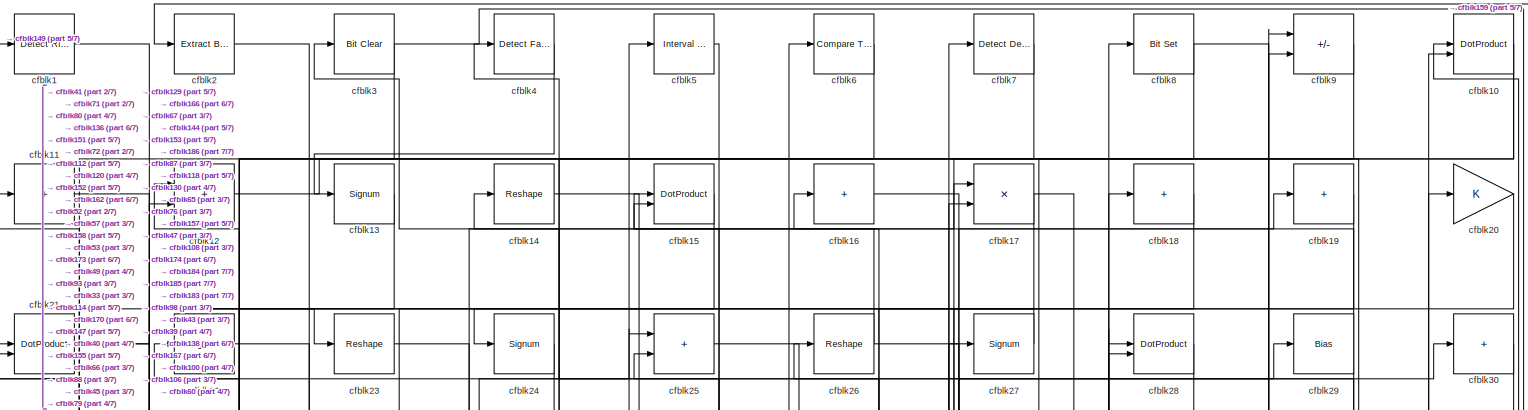
[diagram: root canvas - part 1/7, full width, top band]
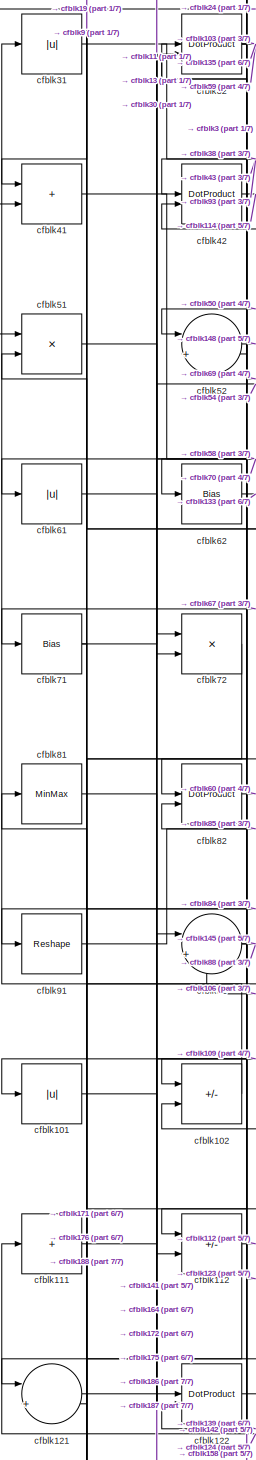
[diagram: root canvas - part 2/7, middle left region]
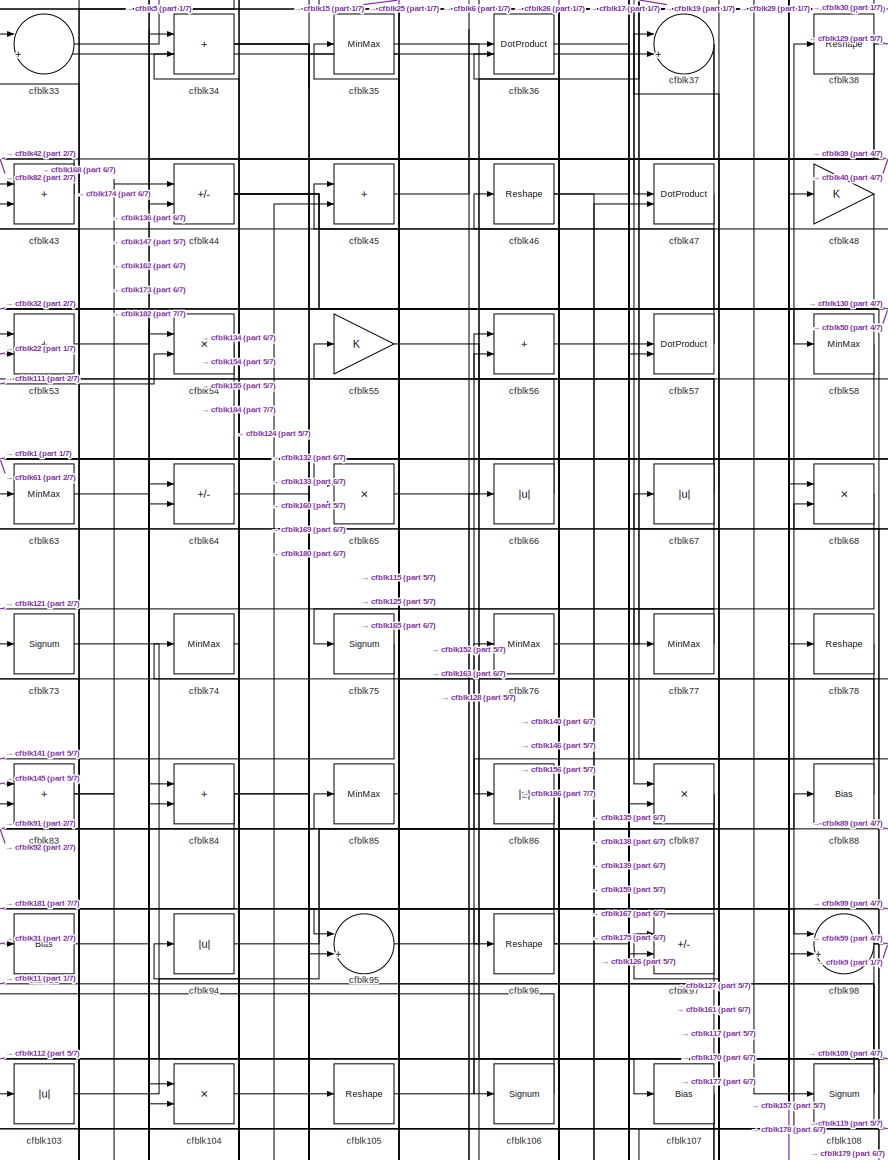
[diagram: root canvas - part 3/7, central region]
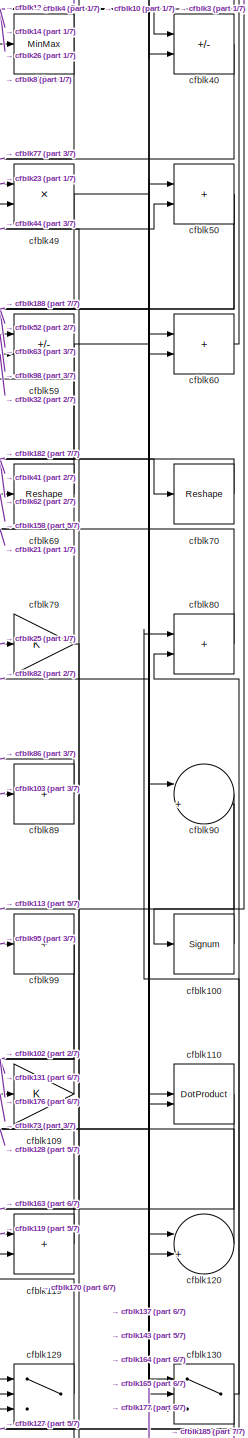
[diagram: root canvas - part 4/7, middle right region]
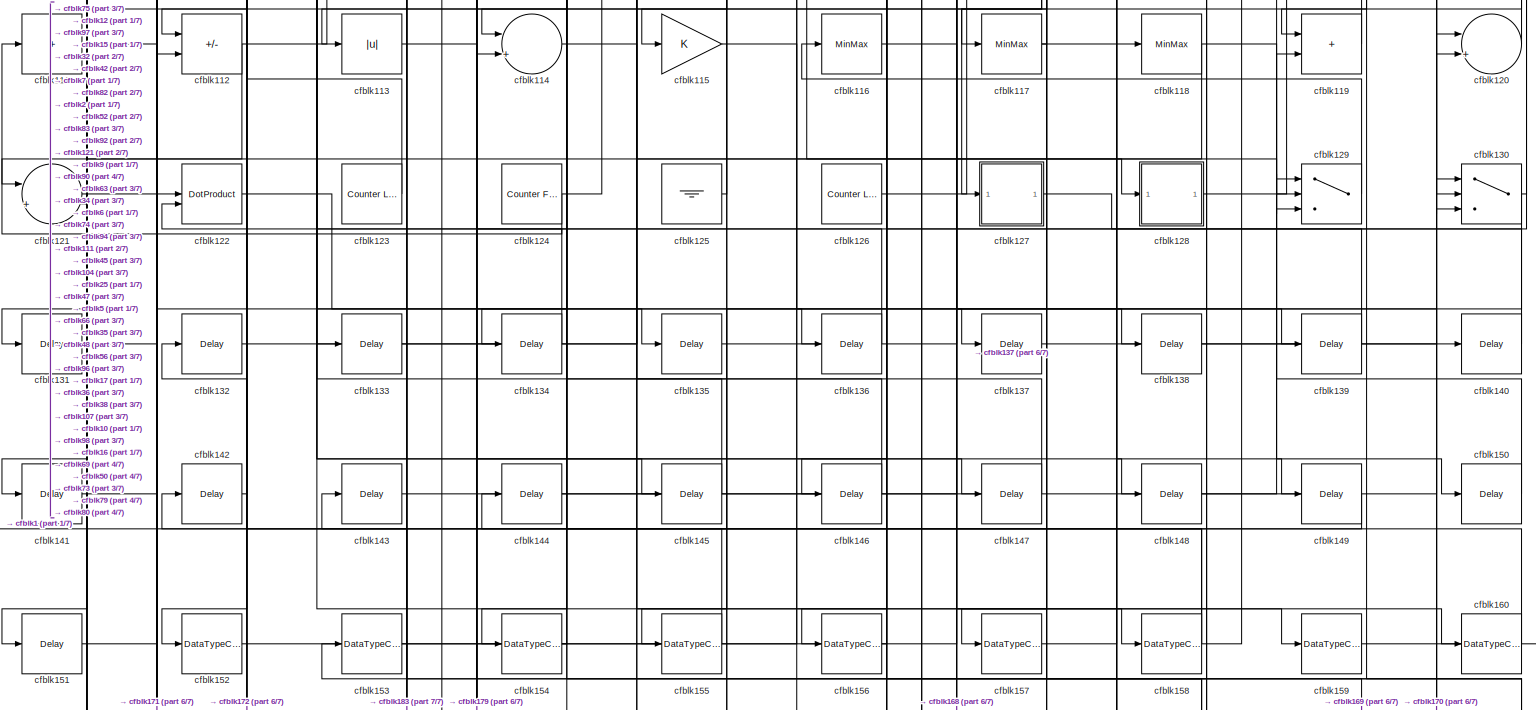
[diagram: root canvas - part 5/7, full width, bottom band]
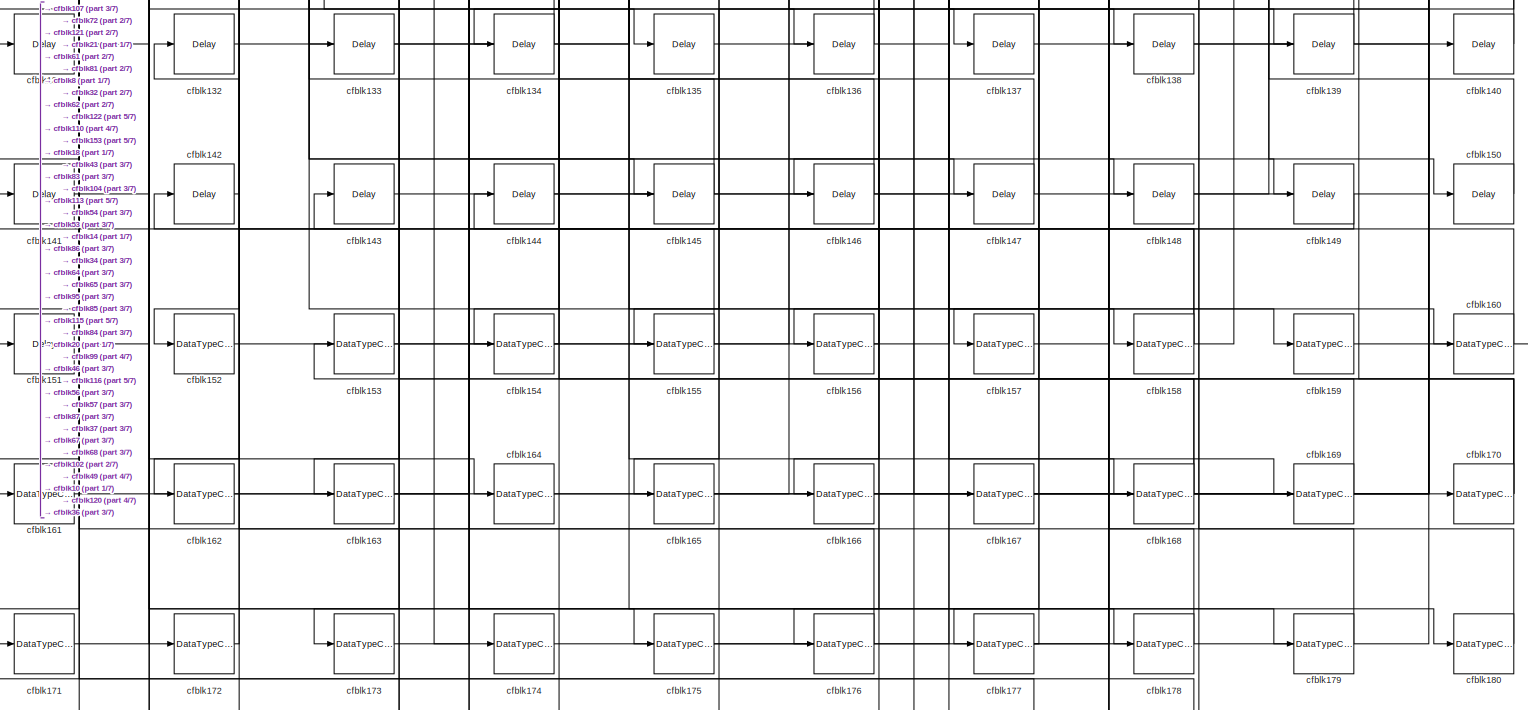
[diagram: root canvas - part 6/7, full width, bottom band]
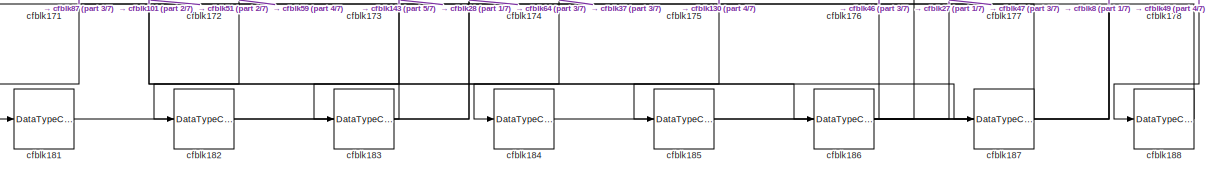
[diagram: root canvas - part 7/7, full width, bottom band]
MODEL slx_a31eda658acb
KIND model
CONFIG AbsTol = auto
CONFIG EnableMultiTasking = off
CONFIG FixedStep = auto
CONFIG MaxStep = auto
CONFIG MinStep = auto
CONFIG RelTol = 1e-3
CONFIG SampleTimeConstraint = Unconstrained
CONFIG SolverName = VariableStepAuto
CONFIG StartTime = 0.0
CONFIG StopTime = 10.0
BLOCK [Reference] cfblk1  REF=hdlsllib/Logic and Bit
Operations/Detect Rise
Positive
  SourceBlock = hdlsllib/Logic and Bit\nOperations/Detect Rise\nPositive
  SourceType = Detect Rise Positive
BLOCK [DotProduct] cfblk10
  OutDataTypeStr = Inherit: Inherit via internal rule
BLOCK [Signum] cfblk100
BLOCK [Abs] cfblk101
  SaturateOnIntegerOverflow = off
BLOCK [Sum] cfblk102
  IconShape = rectangular
  Inputs = +-
BLOCK [Abs] cfblk103
  SaturateOnIntegerOverflow = off
BLOCK [Product] cfblk104
  Inputs = */
  RndMeth = Zero
  SaturateOnIntegerOverflow = on
BLOCK [Reshape] cfblk105
BLOCK [Signum] cfblk106
BLOCK [Bias] cfblk107
  Bias = 0.0
  SaturateOnIntegerOverflow = off
BLOCK [Signum] cfblk108
BLOCK [Gain] cfblk109
BLOCK [Sum] cfblk11
  IconShape = rectangular
  Inputs = +
BLOCK [DotProduct] cfblk110
  OutDataTypeStr = Inherit: Inherit via internal rule
BLOCK [Sum] cfblk111
  IconShape = rectangular
  Inputs = +
BLOCK [Sum] cfblk112
  IconShape = rectangular
  Inputs = +-
BLOCK [Abs] cfblk113
  SaturateOnIntegerOverflow = off
BLOCK [Sum] cfblk114
  Inputs = |++
BLOCK [Gain] cfblk115
BLOCK [MinMax] cfblk116
BLOCK [MinMax] cfblk117
BLOCK [MinMax] cfblk118
BLOCK [Sum] cfblk119
  IconShape = rectangular
BLOCK [Sum] cfblk12
  IconShape = rectangular
BLOCK [Sum] cfblk120
  Inputs = |++
BLOCK [Sum] cfblk121
  Inputs = |++
BLOCK [DotProduct] cfblk122
  OutDataTypeStr = Inherit: Inherit via internal rule
BLOCK [Reference] cfblk123  REF=hdlsllib/Sources/Counter
Limited
  SourceBlock = hdlsllib/Sources/Counter\nLimited
  SourceType = Counter Limited
BLOCK [Reference] cfblk124  REF=hdlsllib/Sources/Counter
Free-Running
  SourceBlock = hdlsllib/Sources/Counter\nFree-Running
  SourceType = Counter Free-Running
BLOCK [Ground] cfblk125
BLOCK [Reference] cfblk126  REF=hdlsllib/Sources/Counter
Limited
  SourceBlock = hdlsllib/Sources/Counter\nLimited
  SourceType = Counter Limited
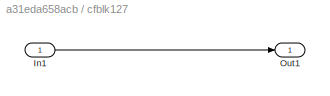
BLOCK [SubSystem] cfblk127
  LibrarySourceBlock = hdlsllib/Ports &\nSubsystems/Subsystem
BLOCK [Inport] cfblk127/In1
BLOCK [Outport] cfblk127/Out1
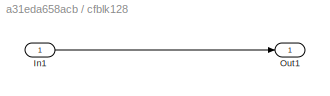
BLOCK [SubSystem] cfblk128
  LibrarySourceBlock = hdlsllib/Ports &\nSubsystems/Subsystem
BLOCK [Inport] cfblk128/In1
BLOCK [Outport] cfblk128/Out1
BLOCK [Switch] cfblk129
  InputSameDT = off
  SaturateOnIntegerOverflow = off
BLOCK [Signum] cfblk13
BLOCK [Switch] cfblk130
  InputSameDT = off
  SaturateOnIntegerOverflow = off
BLOCK [Delay] cfblk131
  InputPortMap = u0
  SampleTime = 1
BLOCK [Delay] cfblk132
  InputPortMap = u0
  SampleTime = 1
BLOCK [Delay] cfblk133
  InputPortMap = u0
  SampleTime = 1
BLOCK [Delay] cfblk134
  InputPortMap = u0
  SampleTime = 1
BLOCK [Delay] cfblk135
  InputPortMap = u0
  SampleTime = 1
BLOCK [Delay] cfblk136
  InputPortMap = u0
  SampleTime = 1
BLOCK [Delay] cfblk137
  InputPortMap = u0
  SampleTime = 1
BLOCK [Delay] cfblk138
  InputPortMap = u0
  SampleTime = 1
BLOCK [Delay] cfblk139
  InputPortMap = u0
  SampleTime = 1
BLOCK [Reshape] cfblk14
BLOCK [Delay] cfblk140
  InputPortMap = u0
  SampleTime = 1
BLOCK [Delay] cfblk141
  InputPortMap = u0
  SampleTime = 1
BLOCK [Delay] cfblk142
  InputPortMap = u0
  SampleTime = 1
BLOCK [Delay] cfblk143
  InputPortMap = u0
  SampleTime = 1
BLOCK [Delay] cfblk144
  InputPortMap = u0
  SampleTime = 1
BLOCK [Delay] cfblk145
  InputPortMap = u0
  SampleTime = 1
BLOCK [Delay] cfblk146
  InputPortMap = u0
  SampleTime = 1
BLOCK [Delay] cfblk147
  InputPortMap = u0
  SampleTime = 1
BLOCK [Delay] cfblk148
  InputPortMap = u0
  SampleTime = 1
BLOCK [Delay] cfblk149
  InputPortMap = u0
  SampleTime = 1
BLOCK [DotProduct] cfblk15
  OutDataTypeStr = Inherit: Inherit via internal rule
BLOCK [Delay] cfblk150
  InputPortMap = u0
  SampleTime = 1
BLOCK [Delay] cfblk151
  InputPortMap = u0
  SampleTime = 1
BLOCK [DataTypeConversion] cfblk152
  OutDataTypeStr = uint8
  RndMeth = Floor
  SaturateOnIntegerOverflow = off
BLOCK [DataTypeConversion] cfblk153
  OutDataTypeStr = uint8
  RndMeth = Floor
  SaturateOnIntegerOverflow = off
BLOCK [DataTypeConversion] cfblk154
  OutDataTypeStr = uint8
  RndMeth = Floor
  SaturateOnIntegerOverflow = off
BLOCK [DataTypeConversion] cfblk155
  OutDataTypeStr = uint8
  RndMeth = Floor
  SaturateOnIntegerOverflow = off
BLOCK [DataTypeConversion] cfblk156
  OutDataTypeStr = uint8
  RndMeth = Floor
  SaturateOnIntegerOverflow = off
BLOCK [DataTypeConversion] cfblk157
  OutDataTypeStr = uint8
  RndMeth = Floor
  SaturateOnIntegerOverflow = off
BLOCK [DataTypeConversion] cfblk158
  RndMeth = Floor
  SaturateOnIntegerOverflow = off
BLOCK [DataTypeConversion] cfblk159
  OutDataTypeStr = uint8
  RndMeth = Floor
  SaturateOnIntegerOverflow = off
BLOCK [Sum] cfblk16
  IconShape = rectangular
  Inputs = +
BLOCK [DataTypeConversion] cfblk160
  OutDataTypeStr = uint8
  RndMeth = Floor
  SaturateOnIntegerOverflow = off
BLOCK [DataTypeConversion] cfblk161
  OutDataTypeStr = uint8
  RndMeth = Floor
  SaturateOnIntegerOverflow = off
BLOCK [DataTypeConversion] cfblk162
  OutDataTypeStr = uint8
  RndMeth = Floor
  SaturateOnIntegerOverflow = off
BLOCK [DataTypeConversion] cfblk163
  OutDataTypeStr = uint8
  RndMeth = Floor
  SaturateOnIntegerOverflow = off
BLOCK [DataTypeConversion] cfblk164
  OutDataTypeStr = uint8
  RndMeth = Floor
  SaturateOnIntegerOverflow = off
BLOCK [DataTypeConversion] cfblk165
  OutDataTypeStr = uint8
  RndMeth = Floor
  SaturateOnIntegerOverflow = off
BLOCK [DataTypeConversion] cfblk166
  OutDataTypeStr = uint8
  RndMeth = Floor
  SaturateOnIntegerOverflow = off
BLOCK [DataTypeConversion] cfblk167
  OutDataTypeStr = uint8
  RndMeth = Floor
  SaturateOnIntegerOverflow = off
BLOCK [DataTypeConversion] cfblk168
  RndMeth = Floor
  SaturateOnIntegerOverflow = off
BLOCK [DataTypeConversion] cfblk169
  OutDataTypeStr = uint8
  RndMeth = Floor
  SaturateOnIntegerOverflow = off
BLOCK [Product] cfblk17
  Inputs = */
  RndMeth = Zero
  SaturateOnIntegerOverflow = on
BLOCK [DataTypeConversion] cfblk170
  RndMeth = Floor
  SaturateOnIntegerOverflow = off
BLOCK [DataTypeConversion] cfblk171
  OutDataTypeStr = uint8
  RndMeth = Floor
  SaturateOnIntegerOverflow = off
BLOCK [DataTypeConversion] cfblk172
  OutDataTypeStr = uint8
  RndMeth = Floor
  SaturateOnIntegerOverflow = off
BLOCK [DataTypeConversion] cfblk173
  OutDataTypeStr = uint8
  RndMeth = Floor
  SaturateOnIntegerOverflow = off
BLOCK [DataTypeConversion] cfblk174
  OutDataTypeStr = uint8
  RndMeth = Floor
  SaturateOnIntegerOverflow = off
BLOCK [DataTypeConversion] cfblk175
  OutDataTypeStr = uint8
  RndMeth = Floor
  SaturateOnIntegerOverflow = off
BLOCK [DataTypeConversion] cfblk176
  OutDataTypeStr = uint8
  RndMeth = Floor
  SaturateOnIntegerOverflow = off
BLOCK [DataTypeConversion] cfblk177
  RndMeth = Floor
  SaturateOnIntegerOverflow = off
BLOCK [DataTypeConversion] cfblk178
  OutDataTypeStr = uint8
  RndMeth = Floor
  SaturateOnIntegerOverflow = off
BLOCK [DataTypeConversion] cfblk179
  OutDataTypeStr = uint8
  RndMeth = Floor
  SaturateOnIntegerOverflow = off
BLOCK [Sum] cfblk18
  IconShape = rectangular
  Inputs = +
BLOCK [DataTypeConversion] cfblk180
  OutDataTypeStr = uint8
  RndMeth = Floor
  SaturateOnIntegerOverflow = off
BLOCK [DataTypeConversion] cfblk181
  OutDataTypeStr = uint8
  RndMeth = Floor
  SaturateOnIntegerOverflow = off
BLOCK [DataTypeConversion] cfblk182
  OutDataTypeStr = uint8
  RndMeth = Floor
  SaturateOnIntegerOverflow = off
BLOCK [DataTypeConversion] cfblk183
  OutDataTypeStr = uint8
  RndMeth = Floor
  SaturateOnIntegerOverflow = off
BLOCK [DataTypeConversion] cfblk184
  OutDataTypeStr = uint8
  RndMeth = Floor
  SaturateOnIntegerOverflow = off
BLOCK [DataTypeConversion] cfblk185
  OutDataTypeStr = uint8
  RndMeth = Floor
  SaturateOnIntegerOverflow = off
BLOCK [DataTypeConversion] cfblk186
  RndMeth = Floor
  SaturateOnIntegerOverflow = off
BLOCK [DataTypeConversion] cfblk187
  OutDataTypeStr = uint8
  RndMeth = Floor
  SaturateOnIntegerOverflow = off
BLOCK [DataTypeConversion] cfblk188
  OutDataTypeStr = uint8
  RndMeth = Floor
  SaturateOnIntegerOverflow = off
BLOCK [Sum] cfblk19
  IconShape = rectangular
  Inputs = +
BLOCK [Reference] cfblk2  REF=simulink/Logic and Bit
Operations/Extract Bits
  LibrarySourceBlock = hdlsllib/Logic and Bit\nOperations/Extract Bits
  SourceBlock = simulink/Logic and Bit\nOperations/Extract Bits
  SourceType = Extract Bits
BLOCK [Gain] cfblk20
BLOCK [DotProduct] cfblk21
  OutDataTypeStr = Inherit: Inherit via internal rule
BLOCK [Signum] cfblk22
BLOCK [Reshape] cfblk23
BLOCK [Signum] cfblk24
BLOCK [Sum] cfblk25
  IconShape = rectangular
BLOCK [Reshape] cfblk26
BLOCK [Signum] cfblk27
BLOCK [DotProduct] cfblk28
  OutDataTypeStr = Inherit: Inherit via internal rule
BLOCK [Bias] cfblk29
  Bias = 0.0
  SaturateOnIntegerOverflow = off
BLOCK [Reference] cfblk3  REF=simulink/Logic and Bit
Operations/Bit Clear
  LibrarySourceBlock = hdlsllib/Logic and Bit\nOperations/Bit Clear
  SourceBlock = simulink/Logic and Bit\nOperations/Bit Clear
  SourceType = Bit Clear
BLOCK [Sum] cfblk30
  IconShape = rectangular
  Inputs = +
BLOCK [Abs] cfblk31
  SaturateOnIntegerOverflow = off
BLOCK [DotProduct] cfblk32
  OutDataTypeStr = Inherit: Inherit via internal rule
BLOCK [Sum] cfblk33
  Inputs = |++
BLOCK [Sum] cfblk34
  IconShape = rectangular
BLOCK [MinMax] cfblk35
BLOCK [DotProduct] cfblk36
  OutDataTypeStr = Inherit: Inherit via internal rule
BLOCK [Sum] cfblk37
  Inputs = |++
BLOCK [Reshape] cfblk38
BLOCK [MinMax] cfblk39
BLOCK [Reference] cfblk4  REF=hdlsllib/Logic and Bit
Operations/Detect Fall
Nonpositive
  SourceBlock = hdlsllib/Logic and Bit\nOperations/Detect Fall\nNonpositive
  SourceType = Detect Fall Nonpositive
BLOCK [Sum] cfblk40
  IconShape = rectangular
  Inputs = +-
BLOCK [Sum] cfblk41
  IconShape = rectangular
BLOCK [DotProduct] cfblk42
  OutDataTypeStr = Inherit: Inherit via internal rule
BLOCK [Sum] cfblk43
  IconShape = rectangular
BLOCK [Sum] cfblk44
  IconShape = rectangular
  Inputs = +-
BLOCK [Sum] cfblk45
  IconShape = rectangular
BLOCK [Reshape] cfblk46
BLOCK [DotProduct] cfblk47
  OutDataTypeStr = Inherit: Inherit via internal rule
BLOCK [Gain] cfblk48
BLOCK [Product] cfblk49
  Inputs = */
  RndMeth = Zero
  SaturateOnIntegerOverflow = on
BLOCK [Reference] cfblk5  REF=hdlsllib/Logic and Bit
Operations/Interval Test
  SourceBlock = hdlsllib/Logic and Bit\nOperations/Interval Test
  SourceType = Interval Test
BLOCK [Sum] cfblk50
  IconShape = rectangular
BLOCK [Product] cfblk51
  Inputs = */
  RndMeth = Zero
  SaturateOnIntegerOverflow = on
BLOCK [Sum] cfblk52
  Inputs = |++
BLOCK [Sum] cfblk53
  IconShape = rectangular
BLOCK [Product] cfblk54
  Inputs = */
  RndMeth = Zero
  SaturateOnIntegerOverflow = on
BLOCK [Gain] cfblk55
BLOCK [Sum] cfblk56
  IconShape = rectangular
BLOCK [DotProduct] cfblk57
  OutDataTypeStr = Inherit: Inherit via internal rule
BLOCK [MinMax] cfblk58
BLOCK [Sum] cfblk59
  IconShape = rectangular
  Inputs = +-
BLOCK [Reference] cfblk6  REF=hdlsllib/Logic and Bit
Operations/Compare
To Constant
  SourceBlock = hdlsllib/Logic and Bit\nOperations/Compare\nTo Constant
  SourceType = Compare To Constant
BLOCK [Sum] cfblk60
  IconShape = rectangular
BLOCK [Abs] cfblk61
  SaturateOnIntegerOverflow = off
BLOCK [Bias] cfblk62
  Bias = 0.0
  SaturateOnIntegerOverflow = off
BLOCK [MinMax] cfblk63
BLOCK [Sum] cfblk64
  IconShape = rectangular
  Inputs = +-
BLOCK [Product] cfblk65
  Inputs = */
  RndMeth = Zero
  SaturateOnIntegerOverflow = on
BLOCK [Abs] cfblk66
  SaturateOnIntegerOverflow = off
BLOCK [Abs] cfblk67
  SaturateOnIntegerOverflow = off
BLOCK [Product] cfblk68
  Inputs = */
  RndMeth = Zero
  SaturateOnIntegerOverflow = on
BLOCK [Reshape] cfblk69
BLOCK [Reference] cfblk7  REF=simulink/Logic and Bit
Operations/Detect
Decrease
  LibrarySourceBlock = hdlsllib/Logic and Bit\nOperations/Detect\nDecrease
  SourceBlock = simulink/Logic and Bit\nOperations/Detect\nDecrease
  SourceType = Detect Decrease
BLOCK [Reshape] cfblk70
BLOCK [Bias] cfblk71
  Bias = 0.0
  SaturateOnIntegerOverflow = off
BLOCK [Product] cfblk72
  Inputs = */
  RndMeth = Zero
  SaturateOnIntegerOverflow = on
BLOCK [Signum] cfblk73
BLOCK [MinMax] cfblk74
BLOCK [Signum] cfblk75
BLOCK [MinMax] cfblk76
BLOCK [MinMax] cfblk77
BLOCK [Reshape] cfblk78
BLOCK [Gain] cfblk79
BLOCK [Reference] cfblk8  REF=simulink/Logic and Bit
Operations/Bit Set
  LibrarySourceBlock = hdlsllib/Logic and Bit\nOperations/Bit Set
  SourceBlock = simulink/Logic and Bit\nOperations/Bit Set
  SourceType = Bit Set
BLOCK [Sum] cfblk80
  IconShape = rectangular
BLOCK [MinMax] cfblk81
BLOCK [DotProduct] cfblk82
  OutDataTypeStr = Inherit: Inherit via internal rule
BLOCK [Sum] cfblk83
  IconShape = rectangular
BLOCK [Sum] cfblk84
  IconShape = rectangular
BLOCK [MinMax] cfblk85
BLOCK [Abs] cfblk86
  SaturateOnIntegerOverflow = off
BLOCK [Product] cfblk87
  Inputs = */
  RndMeth = Zero
  SaturateOnIntegerOverflow = on
BLOCK [Bias] cfblk88
  Bias = 0.0
  SaturateOnIntegerOverflow = off
BLOCK [Sum] cfblk89
  IconShape = rectangular
  Inputs = +
BLOCK [Sum] cfblk9
  IconShape = rectangular
  Inputs = +-
BLOCK [Sum] cfblk90
  Inputs = |++
BLOCK [Reshape] cfblk91
BLOCK [Sum] cfblk92
  Inputs = |++
BLOCK [Bias] cfblk93
  Bias = 0.0
  SaturateOnIntegerOverflow = off
BLOCK [Abs] cfblk94
  SaturateOnIntegerOverflow = off
BLOCK [Sum] cfblk95
  Inputs = |++
BLOCK [Reshape] cfblk96
BLOCK [Sum] cfblk97
  IconShape = rectangular
  Inputs = +-
BLOCK [Sum] cfblk98
  Inputs = |++
BLOCK [Sum] cfblk99
  IconShape = rectangular
  Inputs = +
LINE cfblk100:1 -> cfblk90:2
LINE cfblk101:1 -> cfblk187:1
LINE cfblk102:1 -> cfblk31:1
LINE cfblk103:1 -> cfblk89:1
LINE cfblk104:1 -> cfblk160:1
LINE cfblk105:1 -> cfblk76:1
LINE cfblk106:1 -> cfblk92:2
NET cfblk107:1 -> cfblk127:1, cfblk161:1
NET cfblk108:1 -> cfblk11:1, cfblk33:2
LINE cfblk109:1 -> cfblk102:1
NET cfblk10:1 -> cfblk157:1, cfblk47:1
LINE cfblk110:1 -> cfblk163:1
LINE cfblk111:1 -> cfblk54:2
NET cfblk112:1 -> cfblk121:1, cfblk9:2
LINE cfblk113:1 -> cfblk179:1
LINE cfblk114:1 -> cfblk129:2
LINE cfblk115:1 -> cfblk137:1
LINE cfblk116:1 -> cfblk168:1
NET cfblk117:1 -> cfblk149:1, cfblk97:1
NET cfblk118:1 -> cfblk150:1, cfblk151:1
LINE cfblk119:1 -> cfblk73:1
LINE cfblk11:1 -> cfblk72:1
LINE cfblk120:1 -> cfblk12:1
LINE cfblk121:1 -> cfblk164:1
LINE cfblk122:1 -> cfblk170:1
LINE cfblk123:1 -> cfblk42:2
NET cfblk124:1 -> cfblk111:1, cfblk45:2
LINE cfblk125:1 -> cfblk45:1
LINE cfblk126:1 -> cfblk38:1
LINE cfblk127/In1:1 -> cfblk127/Out1:1
LINE cfblk127:1 -> cfblk80:1
LINE cfblk128/In1:1 -> cfblk128/Out1:1
LINE cfblk128:1 -> cfblk50:1
LINE cfblk129:1 -> cfblk16:1
LINE cfblk12:1 -> cfblk39:1
NET cfblk130:1 -> cfblk185:1, cfblk80:2
LINE cfblk131:1 -> cfblk178:1
LINE cfblk132:1 -> cfblk65:2
LINE cfblk133:1 -> cfblk95:2
LINE cfblk134:1 -> cfblk53:1
LINE cfblk135:1 -> cfblk87:2
LINE cfblk136:1 -> cfblk84:1
LINE cfblk137:1 -> cfblk120:1
LINE cfblk138:1 -> cfblk10:2
LINE cfblk139:1 -> cfblk102:2
LINE cfblk13:1 -> cfblk72:2
LINE cfblk140:1 -> cfblk36:2
LINE cfblk141:1 -> cfblk92:1
LINE cfblk142:1 -> cfblk32:2
LINE cfblk143:1 -> cfblk90:1
LINE cfblk144:1 -> cfblk17:2
LINE cfblk145:1 -> cfblk83:1
LINE cfblk146:1 -> cfblk34:2
LINE cfblk147:1 -> cfblk25:1
LINE cfblk148:1 -> cfblk119:2
LINE cfblk149:1 -> cfblk1:1
LINE cfblk14:1 -> cfblk40:1
LINE cfblk150:1 -> cfblk129:1
LINE cfblk151:1 -> cfblk12:2
LINE cfblk152:1 -> cfblk66:1
LINE cfblk153:1 -> cfblk7:1
LINE cfblk154:1 -> cfblk94:1
LINE cfblk155:1 -> cfblk74:1
LINE cfblk156:1 -> cfblk56:2
LINE cfblk157:1 -> cfblk48:1
NET cfblk158:1 -> cfblk144:1, cfblk69:1, cfblk82:2
LINE cfblk159:1 -> cfblk2:1
LINE cfblk15:1 -> cfblk112:1
LINE cfblk160:1 -> cfblk142:1
LINE cfblk161:1 -> cfblk104:1
LINE cfblk162:1 -> cfblk104:2
LINE cfblk163:1 -> cfblk36:1
LINE cfblk164:1 -> cfblk110:1
LINE cfblk165:1 -> cfblk110:2
LINE cfblk166:1 -> cfblk140:1
LINE cfblk167:1 -> cfblk20:1
NET cfblk168:1 -> cfblk153:1, cfblk43:2
LINE cfblk169:1 -> cfblk116:1
LINE cfblk16:1 -> cfblk118:1
NET cfblk170:1 -> cfblk14:1, cfblk37:1, cfblk49:2
LINE cfblk171:1 -> cfblk122:1
LINE cfblk172:1 -> cfblk122:2
LINE cfblk173:1 -> cfblk54:1
LINE cfblk174:1 -> cfblk18:1
LINE cfblk175:1 -> cfblk57:1
LINE cfblk176:1 -> cfblk81:1
NET cfblk177:1 -> cfblk120:2, cfblk67:1
LINE cfblk178:1 -> cfblk68:1
LINE cfblk179:1 -> cfblk68:2
NET cfblk17:1 -> cfblk108:1, cfblk87:1
LINE cfblk180:1 -> cfblk132:1
LINE cfblk181:1 -> cfblk64:1
LINE cfblk182:1 -> cfblk64:2
LINE cfblk183:1 -> cfblk143:1
LINE cfblk184:1 -> cfblk28:1
LINE cfblk185:1 -> cfblk28:2
NET cfblk186:1 -> cfblk27:1, cfblk46:1, cfblk47:2, cfblk8:1
LINE cfblk187:1 -> cfblk51:1
LINE cfblk188:1 -> cfblk51:2
LINE cfblk18:1 -> cfblk173:1
LINE cfblk19:1 -> cfblk71:1
LINE cfblk1:1 -> cfblk65:1
LINE cfblk20:1 -> cfblk166:1
NET cfblk21:1 -> cfblk136:1, cfblk23:1
LINE cfblk22:1 -> cfblk53:2
LINE cfblk23:1 -> cfblk49:1
LINE cfblk24:1 -> cfblk41:2
LINE cfblk25:1 -> cfblk79:1
NET cfblk26:1 -> cfblk130:3, cfblk15:1
LINE cfblk27:1 -> cfblk24:1
LINE cfblk28:1 -> cfblk183:1
NET cfblk29:1 -> cfblk3:1, cfblk43:1
LINE cfblk2:1 -> cfblk158:1
LINE cfblk30:1 -> cfblk106:1
LINE cfblk31:1 -> cfblk93:1
NET cfblk32:1 -> cfblk103:1, cfblk135:1, cfblk59:2
LINE cfblk33:1 -> cfblk5:1
NET cfblk34:1 -> cfblk169:1, cfblk37:2, cfblk58:1
LINE cfblk35:1 -> cfblk128:1
LINE cfblk36:1 -> cfblk159:1
NET cfblk37:1 -> cfblk184:1, cfblk44:2
NET cfblk38:1 -> cfblk129:3, cfblk57:2, cfblk82:1
NET cfblk39:1 -> cfblk4:1, cfblk95:1
NET cfblk3:1 -> cfblk100:1, cfblk52:2
LINE cfblk40:1 -> cfblk77:1
LINE cfblk41:1 -> cfblk70:1
LINE cfblk42:1 -> cfblk114:2
LINE cfblk43:1 -> cfblk42:1
NET cfblk44:1 -> cfblk130:2, cfblk50:2, cfblk78:1, cfblk98:2
LINE cfblk45:1 -> cfblk6:1
NET cfblk46:1 -> cfblk139:1, cfblk167:1
LINE cfblk47:1 -> cfblk115:1
LINE cfblk48:1 -> cfblk156:1
NET cfblk49:1 -> cfblk188:1, cfblk60:2
LINE cfblk4:1 -> cfblk13:1
NET cfblk50:1 -> cfblk52:1, cfblk63:1
LINE cfblk51:1 -> cfblk186:1
LINE cfblk52:1 -> cfblk148:1
LINE cfblk53:1 -> cfblk34:1
LINE cfblk54:1 -> cfblk84:2
LINE cfblk55:1 -> cfblk107:1
LINE cfblk56:1 -> cfblk138:1
LINE cfblk57:1 -> cfblk22:1
LINE cfblk58:1 -> cfblk61:1
NET cfblk59:1 -> cfblk130:1, cfblk182:1
LINE cfblk5:1 -> cfblk155:1
LINE cfblk60:1 -> cfblk10:1
LINE cfblk61:1 -> cfblk172:1
LINE cfblk62:1 -> cfblk133:1
LINE cfblk63:1 -> cfblk147:1
LINE cfblk64:1 -> cfblk180:1
LINE cfblk65:1 -> cfblk29:1
LINE cfblk66:1 -> cfblk25:2
NET cfblk67:1 -> cfblk121:2, cfblk26:1, cfblk33:1
LINE cfblk68:1 -> cfblk177:1
LINE cfblk69:1 -> cfblk32:1
LINE cfblk6:1 -> cfblk114:1
LINE cfblk70:1 -> cfblk62:1
NET cfblk71:1 -> cfblk101:1, cfblk30:1
LINE cfblk72:1 -> cfblk171:1
LINE cfblk73:1 -> cfblk109:1
LINE cfblk74:1 -> cfblk154:1
LINE cfblk75:1 -> cfblk141:1
LINE cfblk76:1 -> cfblk19:1
LINE cfblk77:1 -> cfblk75:1
LINE cfblk78:1 -> cfblk97:2
NET cfblk79:1 -> cfblk119:1, cfblk21:2
LINE cfblk7:1 -> cfblk152:1
LINE cfblk80:1 -> cfblk21:1
LINE cfblk81:1 -> cfblk175:1
LINE cfblk82:1 -> cfblk60:1
NET cfblk83:1 -> cfblk174:1, cfblk44:1
NET cfblk84:1 -> cfblk105:1, cfblk91:1, cfblk96:1
LINE cfblk85:1 -> cfblk165:1
LINE cfblk86:1 -> cfblk134:1
NET cfblk87:1 -> cfblk181:1, cfblk83:2
LINE cfblk88:1 -> cfblk15:2
LINE cfblk89:1 -> cfblk86:1
NET cfblk8:1 -> cfblk162:1, cfblk40:2
LINE cfblk90:1 -> cfblk113:1
LINE cfblk91:1 -> cfblk85:1
NET cfblk92:1 -> cfblk145:1, cfblk88:1
LINE cfblk93:1 -> cfblk17:1
LINE cfblk94:1 -> cfblk56:1
LINE cfblk95:1 -> cfblk99:1
NET cfblk96:1 -> cfblk146:1, cfblk55:1, cfblk98:1
NET cfblk97:1 -> cfblk112:2, cfblk35:1
NET cfblk98:1 -> cfblk117:1, cfblk59:1, cfblk9:1
NET cfblk99:1 -> cfblk131:1, cfblk176:1
LINE cfblk9:1 -> cfblk41:1
note: NET lines group one-source signal fan-out (src -> all destinations, sorted); 1:1 wires keep LINE
